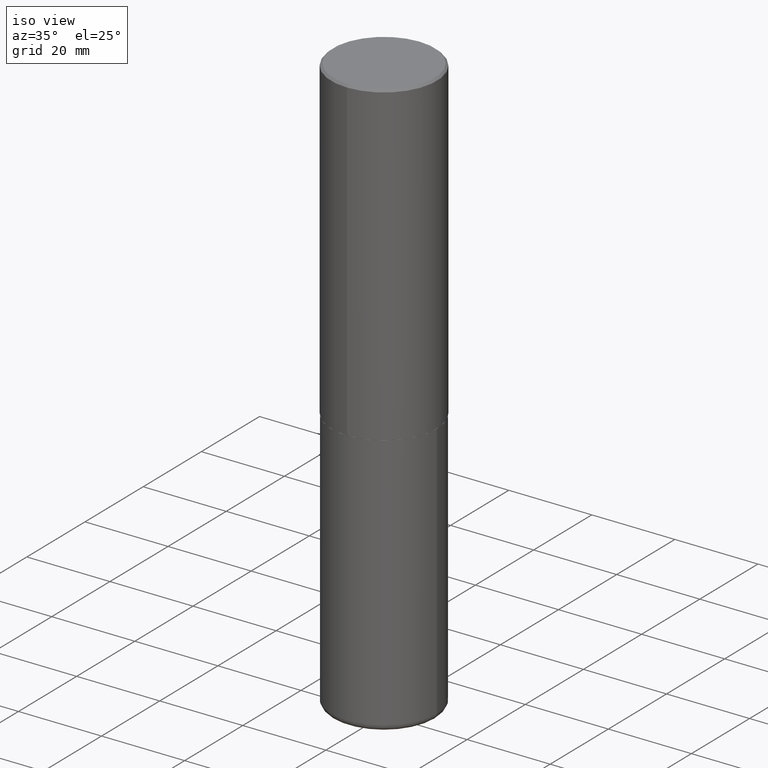
[diagram: clean part render]
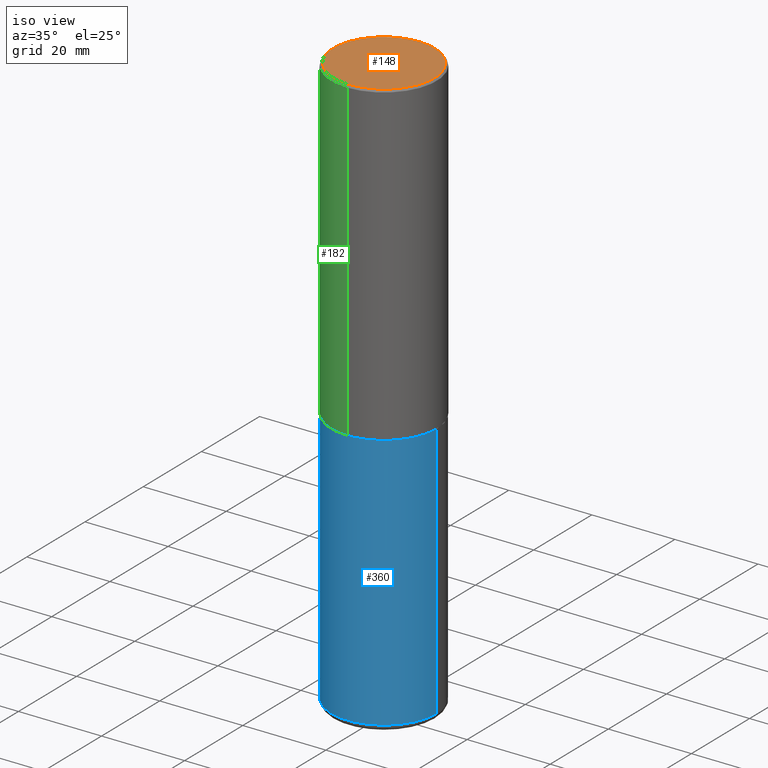
[diagram: same view with three faces highlighted in distinct colors, each labeled with its STEP entity id]
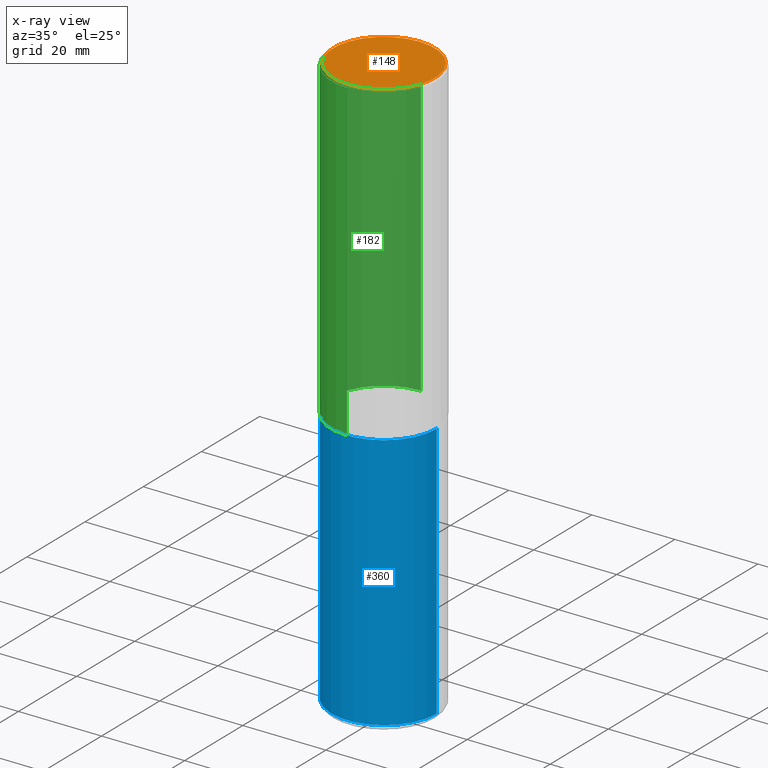
[diagram: x-ray of the same camera — body ghosted, the three highlighted faces saturated]
A machine part, iso view with three faces highlighted in distinct colors.
The next image is the same camera in x-ray (body ghosted, the three faces saturated) — at least one of them is partly hidden behind the body in this view.
Their STEP definitions:

[orange] entity #148 — the highlighted planar face has unit normal (0, -0, -1).
#3 = AXIS2_PLACEMENT_3D ( 'NONE', #138, #376, #83 ) ;
#7 = DIRECTION ( 'NONE',  ( 2.446018302604025097E-29, -3.490694428695902798E-15, -1.000000000000000000 ) ) ;
#28 = CARTESIAN_POINT ( 'NONE',  ( 3.421651712066271240E-15, 0.4800000000000000933, -1.782623854897220357E-15 ) ) ;
#58 = CARTESIAN_POINT ( 'NONE',  ( 2.619453942708643347E-45, -3.738203133764044518E-31, -1.070905291231867826E-16 ) ) ;
#78 = AXIS2_PLACEMENT_3D ( 'NONE', #296, #7, #141 ) ;
#83 = DIRECTION ( 'NONE',  ( -6.982962677686265922E-15, -1.000000000000000000, 3.490694428695902798E-15 ) ) ;
#98 = ORIENTED_EDGE ( 'NONE', *, *, #259, .T. ) ;
#137 = CIRCLE ( 'NONE', #3, 0.4800000000000000933 ) ;
#138 = CARTESIAN_POINT ( 'NONE',  ( 2.619453942708643347E-45, -3.738203133764044518E-31, -1.070905291231867826E-16 ) ) ;
#141 = DIRECTION ( 'NONE',  ( 6.982962677686265922E-15, 1.000000000000000000, -3.490694428695902798E-15 ) ) ;
#148 = ADVANCED_FACE ( 'NONE', ( #194 ), #164, .F. ) ;
#164 = PLANE ( 'NONE',  #78 ) ;
#171 = CARTESIAN_POINT ( 'NONE',  ( -3.361644018908050055E-15, -0.4800000000000000933, 1.568442796650846842E-15 ) ) ;
#180 = EDGE_LOOP ( 'NONE', ( #98, #310 ) ) ;
#194 = FACE_OUTER_BOUND ( 'NONE', #180, .T. ) ;
#259 = EDGE_CURVE ( 'NONE', #404, #279, #137, .T. ) ;
#279 = VERTEX_POINT ( 'NONE', #171 ) ;
#296 = CARTESIAN_POINT ( 'NONE',  ( 3.351822085289408337E-15, 0.4800000000000000933, -1.729078590335627126E-15 ) ) ;
#310 = ORIENTED_EDGE ( 'NONE', *, *, #351, .T. ) ;
#315 = DIRECTION ( 'NONE',  ( -6.982962677686265922E-15, -1.000000000000000000, 3.490694428695902798E-15 ) ) ;
#344 = DIRECTION ( 'NONE',  ( -2.446018302604025378E-29, 3.490694428695902798E-15, 1.000000000000000000 ) ) ;
#351 = EDGE_CURVE ( 'NONE', #279, #404, #394, .T. ) ;
#356 = AXIS2_PLACEMENT_3D ( 'NONE', #58, #344, #315 ) ;
#376 = DIRECTION ( 'NONE',  ( -2.446018302604025378E-29, 3.490694428695902798E-15, 1.000000000000000000 ) ) ;
#394 = CIRCLE ( 'NONE', #356, 0.4800000000000000933 ) ;
#404 = VERTEX_POINT ( 'NONE', #28 ) ;

[blue] entity #360 — the highlighted cylindrical surface (partial cylindrical patch) has radius 12.7 mm, axis along (-0, 0, 1).
#10 = CARTESIAN_POINT ( 'NONE',  ( 0.5000000000000000000, -3.491481338843133355E-15, 2.438088387897967896E-29 ) ) ;
#12 = EDGE_CURVE ( 'NONE', #361, #276, #292, .T. ) ;
#25 = CARTESIAN_POINT ( 'NONE',  ( 0.000000000000000000, 0.000000000000000000, 0.000000000000000000 ) ) ;
#29 = FACE_OUTER_BOUND ( 'NONE', #238, .T. ) ;
#36 = VERTEX_POINT ( 'NONE', #174 ) ;
#49 = DIRECTION ( 'NONE',  ( -2.445468806185136597E-29, 3.491481338843145583E-15, 1.000000000000000000 ) ) ;
#53 = AXIS2_PLACEMENT_3D ( 'NONE', #172, #49, #82 ) ;
#68 = ORIENTED_EDGE ( 'NONE', *, *, #325, .T. ) ;
#71 = ORIENTED_EDGE ( 'NONE', *, *, #126, .F. ) ;
#82 = DIRECTION ( 'NONE',  ( 1.000000000000000000, -6.982962677686266711E-15, 0.000000000000000000 ) ) ;
#95 = ORIENTED_EDGE ( 'NONE', *, *, #216, .T. ) ;
#123 = DIRECTION ( 'NONE',  ( 1.000000000000000000, -6.982962677686266711E-15, 4.876176775795935793E-29 ) ) ;
#126 = EDGE_CURVE ( 'NONE', #36, #361, #130, .T. ) ;
#130 = LINE ( 'NONE', #366, #302 ) ;
#150 = CARTESIAN_POINT ( 'NONE',  ( -0.5000000000000000000, -1.118133757111757295E-14, -2.999999999999999556 ) ) ;
#158 = DIRECTION ( 'NONE',  ( -2.445468806185136877E-29, 3.491481338843145188E-15, 1.000000000000000000 ) ) ;
#168 = LINE ( 'NONE', #10, #304 ) ;
#169 = AXIS2_PLACEMENT_3D ( 'NONE', #278, #305, #407 ) ;
#172 = CARTESIAN_POINT ( 'NONE',  ( 7.336406418555408669E-29, -1.047444401652943478E-14, -2.999999999999999556 ) ) ;
#174 = CARTESIAN_POINT ( 'NONE',  ( -0.5000000000000002220, -1.544094480450621205E-14, -5.439999999999999503 ) ) ;
#176 = CARTESIAN_POINT ( 'NONE',  ( 0.5000000000000002220, -2.248513982214985265E-14, -5.439999999999999503 ) ) ;
#202 = CIRCLE ( 'NONE', #169, 0.5000000000000001110 ) ;
#216 = EDGE_CURVE ( 'NONE', #255, #276, #168, .T. ) ;
#238 = EDGE_LOOP ( 'NONE', ( #71, #68, #95, #308 ) ) ;
#255 = VERTEX_POINT ( 'NONE', #176 ) ;
#276 = VERTEX_POINT ( 'NONE', #368 ) ;
#278 = CARTESIAN_POINT ( 'NONE',  ( 1.330335030564714425E-28, -1.899365848330671298E-14, -5.439999999999999503 ) ) ;
#292 = CIRCLE ( 'NONE', #53, 0.5000000000000000000 ) ;
#302 = VECTOR ( 'NONE', #158, 39.37007874015748143 ) ;
#304 = VECTOR ( 'NONE', #402, 39.37007874015748143 ) ;
#305 = DIRECTION ( 'NONE',  ( -2.445468806185136597E-29, 3.491481338843145583E-15, 1.000000000000000000 ) ) ;
#308 = ORIENTED_EDGE ( 'NONE', *, *, #12, .F. ) ;
#323 = AXIS2_PLACEMENT_3D ( 'NONE', #25, #409, #123 ) ;
#325 = EDGE_CURVE ( 'NONE', #36, #255, #202, .T. ) ;
#360 = ADVANCED_FACE ( 'NONE', ( #29 ), #411, .T. ) ;
#361 = VERTEX_POINT ( 'NONE', #150 ) ;
#366 = CARTESIAN_POINT ( 'NONE',  ( -0.5000000000000000000, 3.552713678800500929E-15, -2.459467545127452891E-29 ) ) ;
#368 = CARTESIAN_POINT ( 'NONE',  ( 0.5000000000000000000, -1.396592535537256813E-14, -2.999999999999999556 ) ) ;
#402 = DIRECTION ( 'NONE',  ( -2.445468806185136877E-29, 3.491481338843145188E-15, 1.000000000000000000 ) ) ;
#407 = DIRECTION ( 'NONE',  ( 1.000000000000000000, -6.982962677686269077E-15, 0.000000000000000000 ) ) ;
#409 = DIRECTION ( 'NONE',  ( -2.445468806185136597E-29, 3.491481338843145583E-15, 1.000000000000000000 ) ) ;
#411 = CYLINDRICAL_SURFACE ( 'NONE', #323, 0.5000000000000000000 ) ;

[green] entity #182 — the highlighted cylindrical surface (partial cylindrical patch) has radius 12.7 mm, axis along (-0, 0, 1).
#22 = DIRECTION ( 'NONE',  ( -6.982962677686265922E-15, -1.000000000000000000, 3.490694428695902798E-15 ) ) ;
#24 = ORIENTED_EDGE ( 'NONE', *, *, #417, .F. ) ;
#42 = CARTESIAN_POINT ( 'NONE',  ( 7.335608889509473609E-29, -1.046859259165901344E-14, -2.999000000000000554 ) ) ;
#65 = VECTOR ( 'NONE', #92, 39.37007874015748143 ) ;
#81 = VERTEX_POINT ( 'NONE', #392 ) ;
#86 = AXIS2_PLACEMENT_3D ( 'NONE', #42, #228, #298 ) ;
#91 = EDGE_CURVE ( 'NONE', #81, #177, #321, .T. ) ;
#92 = DIRECTION ( 'NONE',  ( -2.446018302604025097E-29, 3.490694428695902798E-15, 1.000000000000000000 ) ) ;
#111 = FACE_OUTER_BOUND ( 'NONE', #345, .T. ) ;
#114 = VERTEX_POINT ( 'NONE', #161 ) ;
#118 = CARTESIAN_POINT ( 'NONE',  ( -3.491481338843133750E-15, -0.5000000000000001110, 1.745347214347951794E-15 ) ) ;
#131 = ORIENTED_EDGE ( 'NONE', *, *, #91, .T. ) ;
#143 = AXIS2_PLACEMENT_3D ( 'NONE', #385, #320, #154 ) ;
#154 = DIRECTION ( 'NONE',  ( -6.982962677686265922E-15, -1.000000000000000000, 3.491643216902136408E-15 ) ) ;
#156 = VECTOR ( 'NONE', #314, 39.37007874015748143 ) ;
#161 = CARTESIAN_POINT ( 'NONE',  ( 3.491481338843133355E-15, 0.4999999999999999445, -0.02000000000000185310 ) ) ;
#177 = VERTEX_POINT ( 'NONE', #206 ) ;
#182 = ADVANCED_FACE ( 'NONE', ( #111 ), #396, .T. ) ;
#183 = ORIENTED_EDGE ( 'NONE', *, *, #381, .T. ) ;
#200 = CARTESIAN_POINT ( 'NONE',  ( 0.000000000000000000, 0.000000000000000000, 0.000000000000000000 ) ) ;
#206 = CARTESIAN_POINT ( 'NONE',  ( -3.491481338843061963E-15, -0.5000000000000107692, -2.998999999999998778 ) ) ;
#208 = CARTESIAN_POINT ( 'NONE',  ( -3.430248998885764992E-15, -0.5000000000000001110, -0.01999999999999835937 ) ) ;
#228 = DIRECTION ( 'NONE',  ( -2.446018302604025378E-29, 3.490694428695902798E-15, 1.000000000000000000 ) ) ;
#245 = LINE ( 'NONE', #416, #156 ) ;
#271 = VERTEX_POINT ( 'NONE', #208 ) ;
#272 = AXIS2_PLACEMENT_3D ( 'NONE', #200, #336, #22 ) ;
#282 = LINE ( 'NONE', #118, #65 ) ;
#298 = DIRECTION ( 'NONE',  ( -6.982962677686265922E-15, -1.000000000000000000, 3.278217592397113496E-15 ) ) ;
#314 = DIRECTION ( 'NONE',  ( -2.446018302604025097E-29, 3.490694428695902798E-15, 1.000000000000000000 ) ) ;
#320 = DIRECTION ( 'NONE',  ( -2.446018302604025378E-29, 3.490694428695902798E-15, 1.000000000000000000 ) ) ;
#321 = CIRCLE ( 'NONE', #86, 0.5000000000000003331 ) ;
#336 = DIRECTION ( 'NONE',  ( -2.446018302604025378E-29, 3.490694428695902798E-15, 1.000000000000000000 ) ) ;
#345 = EDGE_LOOP ( 'NONE', ( #24, #131, #183, #406 ) ) ;
#350 = CIRCLE ( 'NONE', #143, 0.5000000000000000000 ) ;
#381 = EDGE_CURVE ( 'NONE', #177, #271, #282, .T. ) ;
#385 = CARTESIAN_POINT ( 'NONE',  ( 4.892036605208077240E-31, -6.981388857391842821E-17, -0.02000000000000010797 ) ) ;
#388 = EDGE_CURVE ( 'NONE', #114, #271, #350, .T. ) ;
#392 = CARTESIAN_POINT ( 'NONE',  ( 3.552713678800539584E-15, 0.4999999999999898970, -2.999000000000001886 ) ) ;
#396 = CYLINDRICAL_SURFACE ( 'NONE', #272, 0.5000000000000001110 ) ;
#406 = ORIENTED_EDGE ( 'NONE', *, *, #388, .F. ) ;
#416 = CARTESIAN_POINT ( 'NONE',  ( 3.552713678800501718E-15, 0.5000000000000001110, -1.745347214347951794E-15 ) ) ;
#417 = EDGE_CURVE ( 'NONE', #81, #114, #245, .T. ) ;